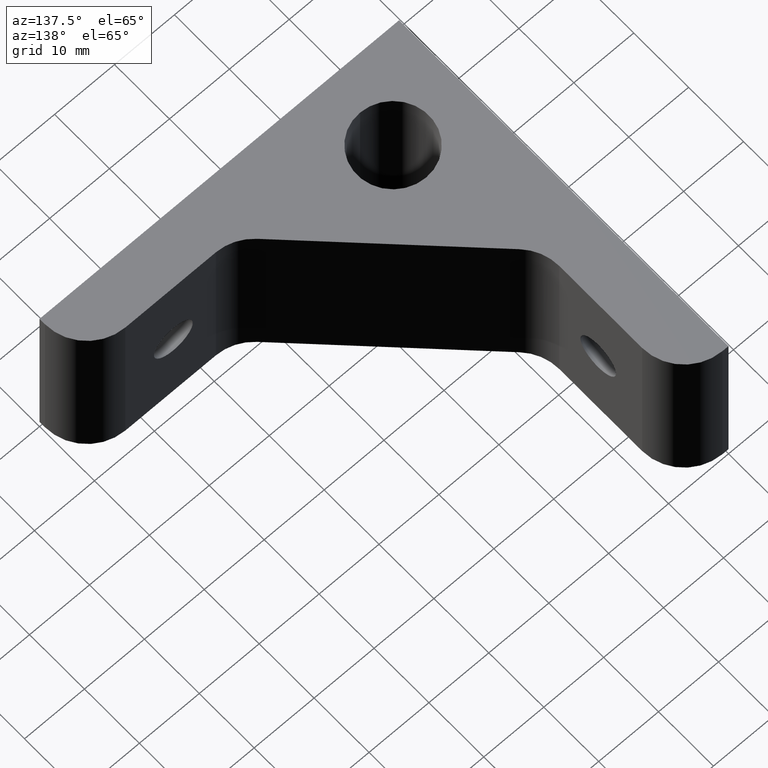
[diagram: clean part render]
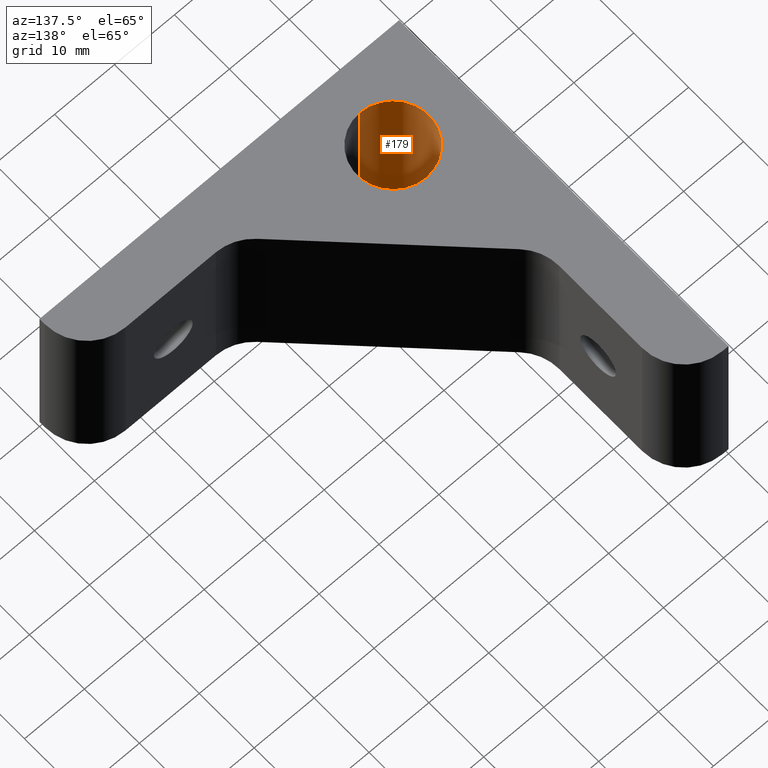
[diagram: same view with one face highlighted and labeled with its STEP entity id]
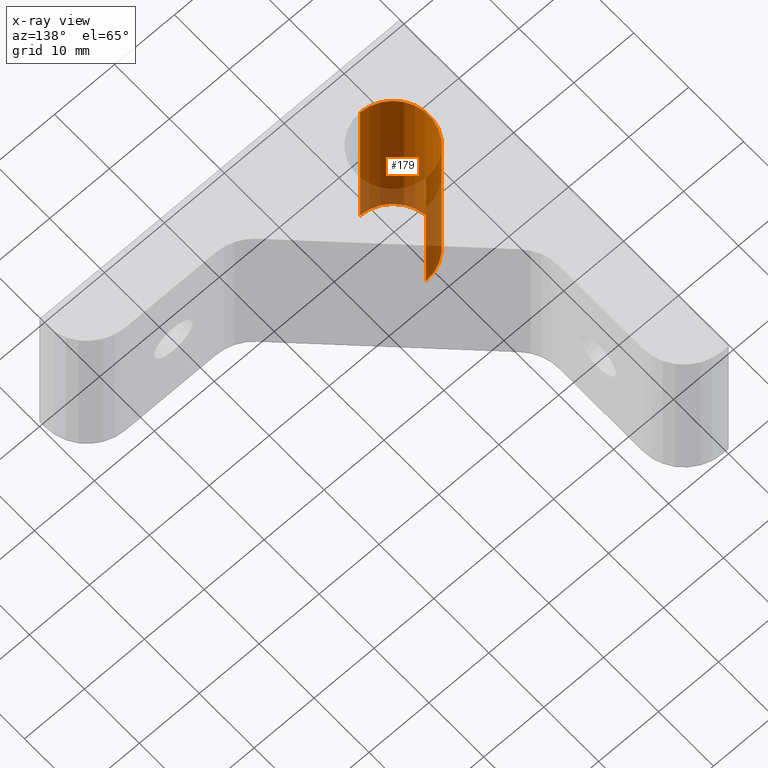
[diagram: x-ray of the same camera — body ghosted, the highlighted face saturated]
A machine part, auxiliary view. The second image highlights one B-rep face of the part: STEP entity #179.
The next image is the same camera in x-ray: the body ghosted, the highlighted face saturated — about 29% of this face is hidden behind the body in this view.
In plain terms, the highlighted cylindrical surface (partial cylindrical patch) has radius 6 mm, axis along (0, -0, -1).
Its self-contained STEP definition (entity closure, byte-faithful):
#151 = CARTESIAN_POINT ( 'NONE',  ( -48.00000000000000000, 17.99999999999998900, -1.734723475976807900E-015 ) ) ;
#154 = CARTESIAN_POINT ( 'NONE',  ( -48.00000000000000000, 5.999999999999992900, 1.734723475976807500E-015 ) ) ;
#171 = CARTESIAN_POINT ( 'NONE',  ( -48.00000000000000000, 6.000000000000001800, 30.00000000000000400 ) ) ;
#179 = ADVANCED_FACE ( 'NONE', ( #613 ), #614, .F. ) ;
#275 = DIRECTION ( 'NONE',  ( 0.0000000000000000000, 1.000000000000000000, -2.891205793294681300E-016 ) ) ;
#276 = DIRECTION ( 'NONE',  ( 0.0000000000000000000, -2.891205793294680300E-016, -1.000000000000000000 ) ) ;
#277 = CARTESIAN_POINT ( 'NONE',  ( -48.00000000000000000, 11.99999999999999100, 0.0000000000000000000 ) ) ;
#283 = DIRECTION ( 'NONE',  ( 0.0000000000000000000, -2.891205793294680300E-016, -1.000000000000000000 ) ) ;
#284 = CARTESIAN_POINT ( 'NONE',  ( -48.00000000000000000, 6.000000000000001800, 30.00000000000000400 ) ) ;
#285 = EDGE_CURVE ( 'NONE', #469, #419, #642, .T. ) ;
#286 = EDGE_CURVE ( 'NONE', #453, #422, #640, .T. ) ;
#289 = EDGE_CURVE ( 'NONE', #422, #419, #695, .T. ) ;
#295 = EDGE_CURVE ( 'NONE', #453, #469, #648, .T. ) ;
#331 = CARTESIAN_POINT ( 'NONE',  ( -48.00000000000000000, 12.00000000000000000, 30.00000000000000000 ) ) ;
#332 = DIRECTION ( 'NONE',  ( 0.0000000000000000000, -2.891205793294680300E-016, -1.000000000000000000 ) ) ;
#333 = DIRECTION ( 'NONE',  ( 0.0000000000000000000, 1.000000000000000000, -5.782411586589358600E-016 ) ) ;
#398 = AXIS2_PLACEMENT_3D ( 'NONE', #466, #440, #449 ) ;
#419 = VERTEX_POINT ( 'NONE', #151 ) ;
#422 = VERTEX_POINT ( 'NONE', #154 ) ;
#440 = DIRECTION ( 'NONE',  ( 0.0000000000000000000, -2.891205793294680300E-016, -1.000000000000000000 ) ) ;
#449 = DIRECTION ( 'NONE',  ( 0.0000000000000000000, 1.000000000000000000, -5.782411586589358600E-016 ) ) ;
#453 = VERTEX_POINT ( 'NONE', #171 ) ;
#466 = CARTESIAN_POINT ( 'NONE',  ( -48.00000000000000000, 12.00000000000000000, 30.00000000000000000 ) ) ;
#469 = VERTEX_POINT ( 'NONE', #493 ) ;
#488 = AXIS2_PLACEMENT_3D ( 'NONE', #277, #276, #275 ) ;
#492 = AXIS2_PLACEMENT_3D ( 'NONE', #331, #332, #333 ) ;
#493 = CARTESIAN_POINT ( 'NONE',  ( -48.00000000000000000, 18.00000000000000000, 29.99999999999999600 ) ) ;
#521 = DIRECTION ( 'NONE',  ( 0.0000000000000000000, -2.891205793294680300E-016, -1.000000000000000000 ) ) ;
#522 = CARTESIAN_POINT ( 'NONE',  ( -48.00000000000000000, 18.00000000000000000, 29.99999999999999600 ) ) ;
#580 = EDGE_LOOP ( 'NONE', ( #635, #633, #646, #647 ) ) ;
#613 = FACE_OUTER_BOUND ( 'NONE', #580, .T. ) ;
#614 = CYLINDRICAL_SURFACE ( 'NONE', #398, 5.999999999999998200 ) ;
#633 = ORIENTED_EDGE ( 'NONE', *, *, #286, .T. ) ;
#635 = ORIENTED_EDGE ( 'NONE', *, *, #295, .F. ) ;
#639 = VECTOR ( 'NONE', #283, 1000.000000000000000 ) ;
#640 = LINE ( 'NONE', #284, #639 ) ;
#641 = VECTOR ( 'NONE', #521, 1000.000000000000000 ) ;
#642 = LINE ( 'NONE', #522, #641 ) ;
#646 = ORIENTED_EDGE ( 'NONE', *, *, #289, .T. ) ;
#647 = ORIENTED_EDGE ( 'NONE', *, *, #285, .F. ) ;
#648 = CIRCLE ( 'NONE', #492, 5.999999999999998200 ) ;
#695 = CIRCLE ( 'NONE', #488, 5.999999999999996400 ) ;